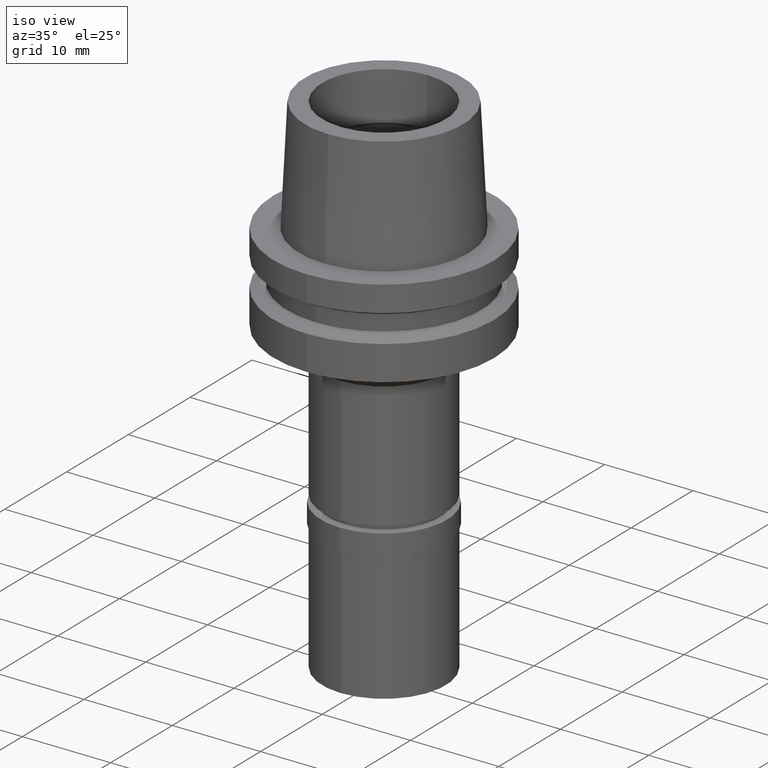
[diagram: clean part render]
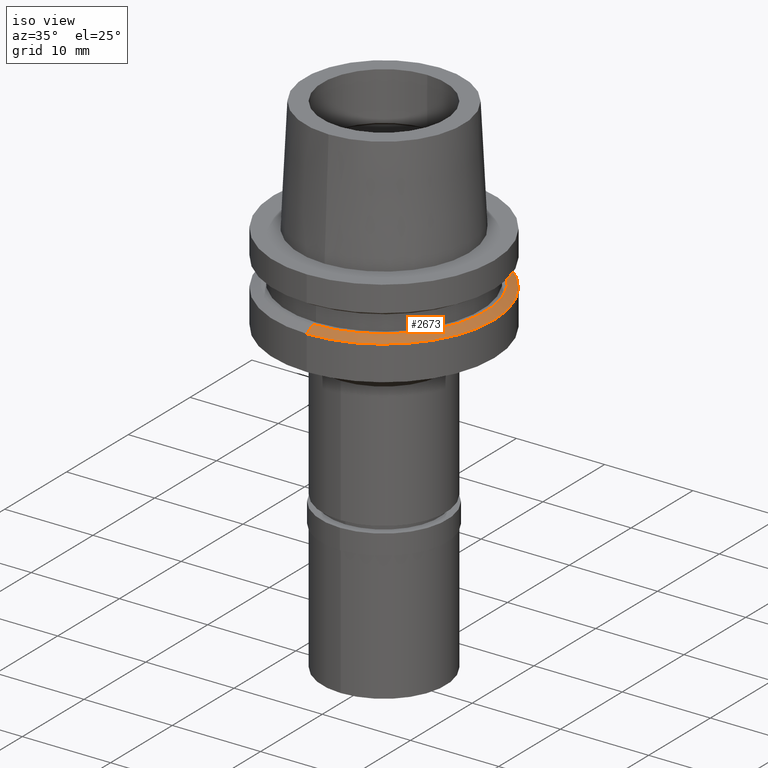
[diagram: same view with one face highlighted and labeled with its STEP entity id]
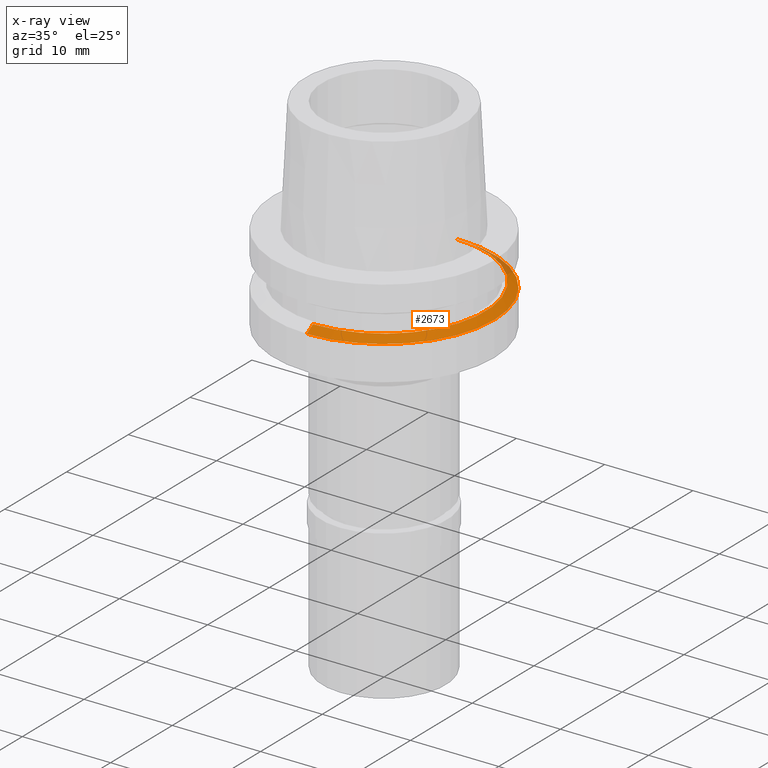
[diagram: x-ray of the same camera — body ghosted, the highlighted face saturated]
A machine part, iso view. The second image highlights one B-rep face of the part: STEP entity #2673.
The next image is the same camera in x-ray: the body ghosted, the highlighted face saturated — about 6% of this face is hidden behind the body in this view.
In plain terms, the highlighted conical surface has half-angle 60 deg.
Its self-contained STEP definition (entity closure, byte-faithful):
#28 = EDGE_CURVE ( 'NONE', #2069, #2203, #978, .T. ) ;
#341 = CARTESIAN_POINT ( 'NONE',  ( 0.0000000000000000000, 11.48205080757000118, -5.500000000003000267 ) ) ;
#383 = CARTESIAN_POINT ( 'NONE',  ( 0.0000000000000000000, 0.0000000000000000000, -5.500000000003000267 ) ) ;
#399 = VECTOR ( 'NONE', #1682, 1000.000000000000114 ) ;
#442 = CONICAL_SURFACE ( 'NONE', #489, 11.99102540378000192, 1.047197551196400456 ) ;
#468 = DIRECTION ( 'NONE',  ( 0.0000000000000000000, 1.000000000000000000, 0.0000000000000000000 ) ) ;
#482 = AXIS2_PLACEMENT_3D ( 'NONE', #2383, #1344, #2534 ) ;
#489 = AXIS2_PLACEMENT_3D ( 'NONE', #1054, #1269, #1894 ) ;
#555 = CARTESIAN_POINT ( 'NONE',  ( 0.0000000000000000000, -12.50000000000000000, -6.087713240272000448 ) ) ;
#763 = EDGE_CURVE ( 'NONE', #2069, #937, #1585, .T. ) ;
#777 = ORIENTED_EDGE ( 'NONE', *, *, #763, .T. ) ;
#937 = VERTEX_POINT ( 'NONE', #2089 ) ;
#978 = LINE ( 'NONE', #1429, #1895 ) ;
#987 = EDGE_CURVE ( 'NONE', #937, #2208, #1855, .T. ) ;
#1031 = CARTESIAN_POINT ( 'NONE',  ( 0.0000000000000000000, -11.48205080757000118, -5.500000000002000178 ) ) ;
#1054 = CARTESIAN_POINT ( 'NONE',  ( 0.0000000000000000000, 0.0000000000000000000, -5.793856620138000402 ) ) ;
#1220 = ORIENTED_EDGE ( 'NONE', *, *, #1755, .F. ) ;
#1269 = DIRECTION ( 'NONE',  ( 0.0000000000000000000, 0.0000000000000000000, -1.000000000000000000 ) ) ;
#1318 = CIRCLE ( 'NONE', #482, 12.50000000000000000 ) ;
#1344 = DIRECTION ( 'NONE',  ( 0.0000000000000000000, 0.0000000000000000000, -1.000000000000000000 ) ) ;
#1390 = ORIENTED_EDGE ( 'NONE', *, *, #28, .F. ) ;
#1429 = CARTESIAN_POINT ( 'NONE',  ( 0.0000000000000000000, 11.48205080757000118, -5.500000000002000178 ) ) ;
#1585 = CIRCLE ( 'NONE', #2122, 11.48205080757000118 ) ;
#1682 = DIRECTION ( 'NONE',  ( 0.0000000000000000000, -0.8660254037846089048, -0.4999999999997049027 ) ) ;
#1755 = EDGE_CURVE ( 'NONE', #2203, #2208, #1318, .T. ) ;
#1848 = DIRECTION ( 'NONE',  ( 0.0000000000000000000, 0.0000000000000000000, -1.000000000000000000 ) ) ;
#1855 = LINE ( 'NONE', #1031, #399 ) ;
#1894 = DIRECTION ( 'NONE',  ( 0.0000000000000000000, -1.000000000000000000, 0.0000000000000000000 ) ) ;
#1895 = VECTOR ( 'NONE', #2451, 1000.000000000000114 ) ;
#2069 = VERTEX_POINT ( 'NONE', #341 ) ;
#2089 = CARTESIAN_POINT ( 'NONE',  ( 0.0000000000000000000, -11.48205080757000118, -5.500000000003000267 ) ) ;
#2121 = ORIENTED_EDGE ( 'NONE', *, *, #987, .T. ) ;
#2122 = AXIS2_PLACEMENT_3D ( 'NONE', #383, #1848, #468 ) ;
#2203 = VERTEX_POINT ( 'NONE', #2379 ) ;
#2208 = VERTEX_POINT ( 'NONE', #555 ) ;
#2280 = EDGE_LOOP ( 'NONE', ( #777, #2121, #1220, #1390 ) ) ;
#2379 = CARTESIAN_POINT ( 'NONE',  ( 0.0000000000000000000, 12.50000000000000000, -6.087713240272000448 ) ) ;
#2383 = CARTESIAN_POINT ( 'NONE',  ( 0.0000000000000000000, 0.0000000000000000000, -6.087713240272999649 ) ) ;
#2392 = FACE_OUTER_BOUND ( 'NONE', #2280, .T. ) ;
#2451 = DIRECTION ( 'NONE',  ( 0.0000000000000000000, 0.8660254037846089048, -0.4999999999997049027 ) ) ;
#2534 = DIRECTION ( 'NONE',  ( 0.0000000000000000000, 1.000000000000000000, 0.0000000000000000000 ) ) ;
#2673 = ADVANCED_FACE ( 'NONE', ( #2392 ), #442, .T. ) ;